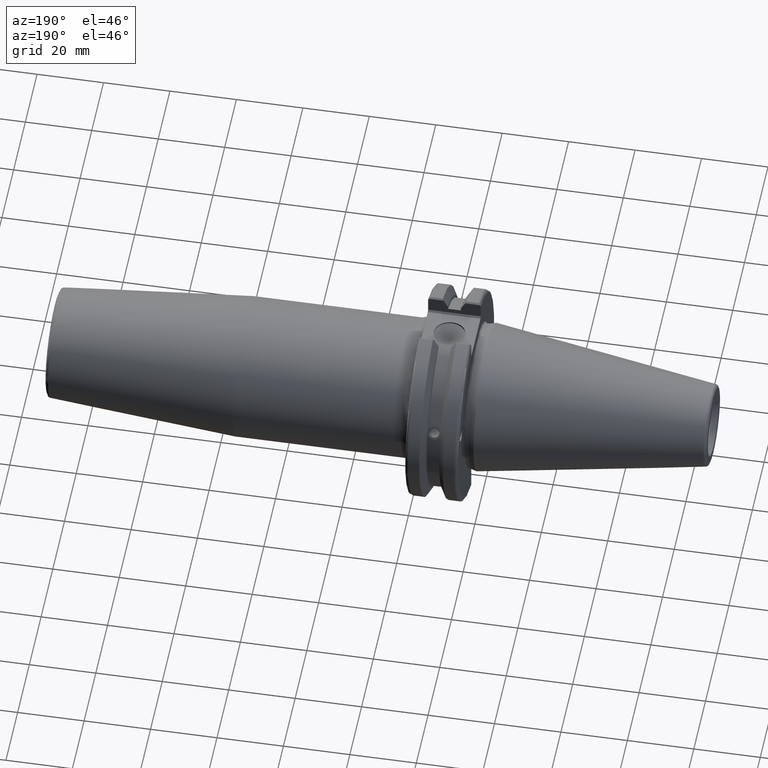
[diagram: clean part render]
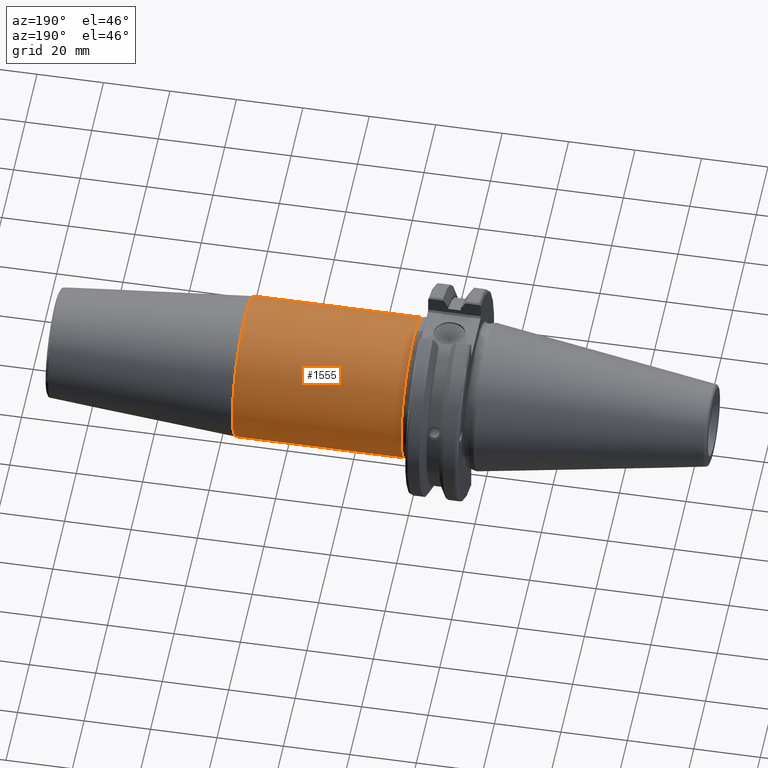
[diagram: same view with one face highlighted and labeled with its STEP entity id]
A machine part, auxiliary view. The second image highlights one B-rep face of the part: STEP entity #1555.
In plain terms, the highlighted cylindrical surface (bore or boss wall) has radius 21 mm, axis along (1, 0, 0).
Its self-contained STEP definition (entity closure, byte-faithful):
#149=CYLINDRICAL_SURFACE('',#1683,21.);
#186=FACE_OUTER_BOUND('',#280,.T.);
#280=EDGE_LOOP('',(#1085,#1086,#1087,#1088,#1089));
#382=LINE('',#2389,#479);
#479=VECTOR('',#1900,21.);
#578=CIRCLE('',#1677,21.);
#579=CIRCLE('',#1679,21.);
#582=CIRCLE('',#1682,21.);
#656=VERTEX_POINT('',#2349);
#657=VERTEX_POINT('',#2353);
#658=VERTEX_POINT('',#2354);
#820=EDGE_CURVE('',#656,#656,#578,.T.);
#821=EDGE_CURVE('',#657,#658,#579,.T.);
#828=EDGE_CURVE('',#658,#657,#582,.T.);
#829=EDGE_CURVE('',#656,#657,#382,.T.);
#1085=ORIENTED_EDGE('',*,*,#820,.F.);
#1086=ORIENTED_EDGE('',*,*,#829,.T.);
#1087=ORIENTED_EDGE('',*,*,#828,.F.);
#1088=ORIENTED_EDGE('',*,*,#821,.F.);
#1089=ORIENTED_EDGE('',*,*,#829,.F.);
#1555=ADVANCED_FACE('',(#186),#149,.T.);
#1677=AXIS2_PLACEMENT_3D('',#2351,#1886,#1887);
#1679=AXIS2_PLACEMENT_3D('',#2355,#1890,#1891);
#1682=AXIS2_PLACEMENT_3D('',#2387,#1896,#1897);
#1683=AXIS2_PLACEMENT_3D('',#2388,#1898,#1899);
#1886=DIRECTION('center_axis',(1.,0.,0.));
#1887=DIRECTION('ref_axis',(0.,0.,-1.));
#1890=DIRECTION('center_axis',(-1.,0.,0.));
#1891=DIRECTION('ref_axis',(0.,-1.,-1.22464679914735E-16));
#1896=DIRECTION('center_axis',(-1.,0.,0.));
#1897=DIRECTION('ref_axis',(0.,-1.,-1.22464679914735E-16));
#1898=DIRECTION('center_axis',(1.,0.,0.));
#1899=DIRECTION('ref_axis',(0.,1.,0.));
#1900=DIRECTION('',(-1.,0.,0.));
#2349=CARTESIAN_POINT('',(72.8220786872138,-21.,-2.57175827820944E-15));
#2351=CARTESIAN_POINT('Origin',(72.8220786872138,0.,0.));
#2353=CARTESIAN_POINT('',(22.05,-21.,-2.57175827820944E-15));
#2354=CARTESIAN_POINT('',(22.05,-2.57175827820944E-15,-21.));
#2355=CARTESIAN_POINT('Origin',(22.05,0.,0.));
#2387=CARTESIAN_POINT('Origin',(22.05,0.,0.));
#2388=CARTESIAN_POINT('Origin',(45.9360393436069,0.,0.));
#2389=CARTESIAN_POINT('',(45.9360393436069,-21.,-2.57175827820944E-15));